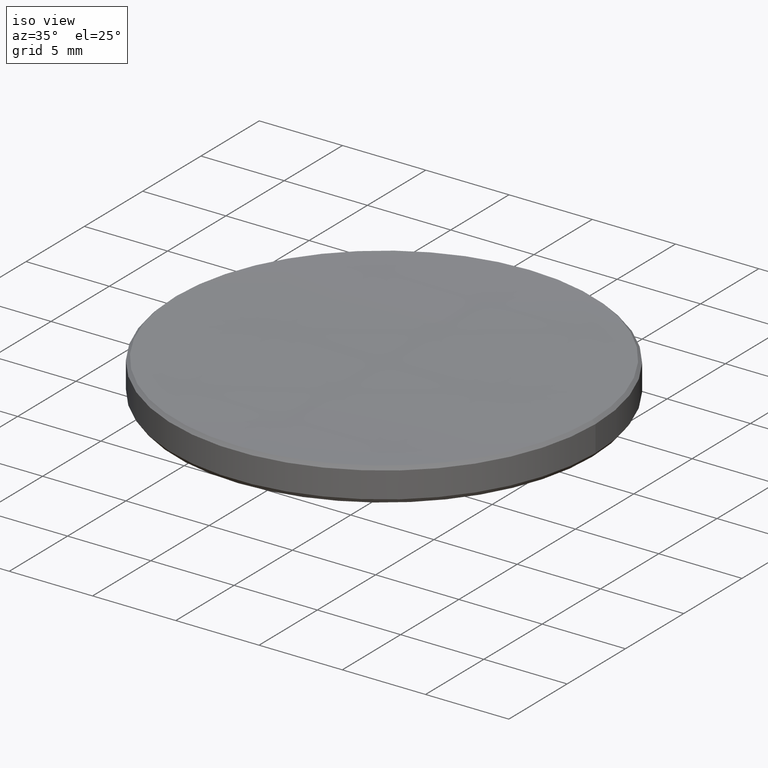
[diagram: clean part render]
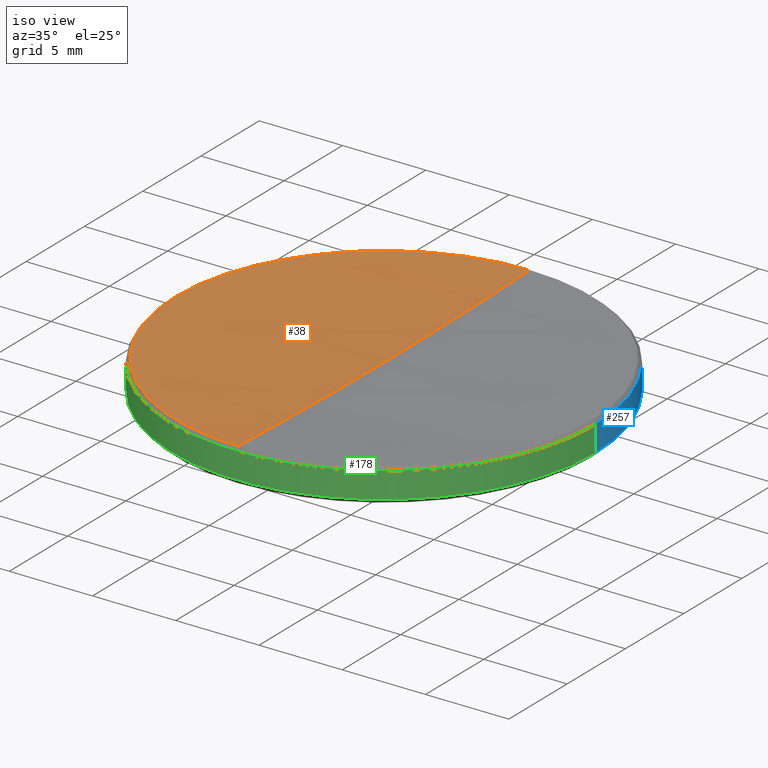
[diagram: same view with three faces highlighted in distinct colors, each labeled with its STEP entity id]
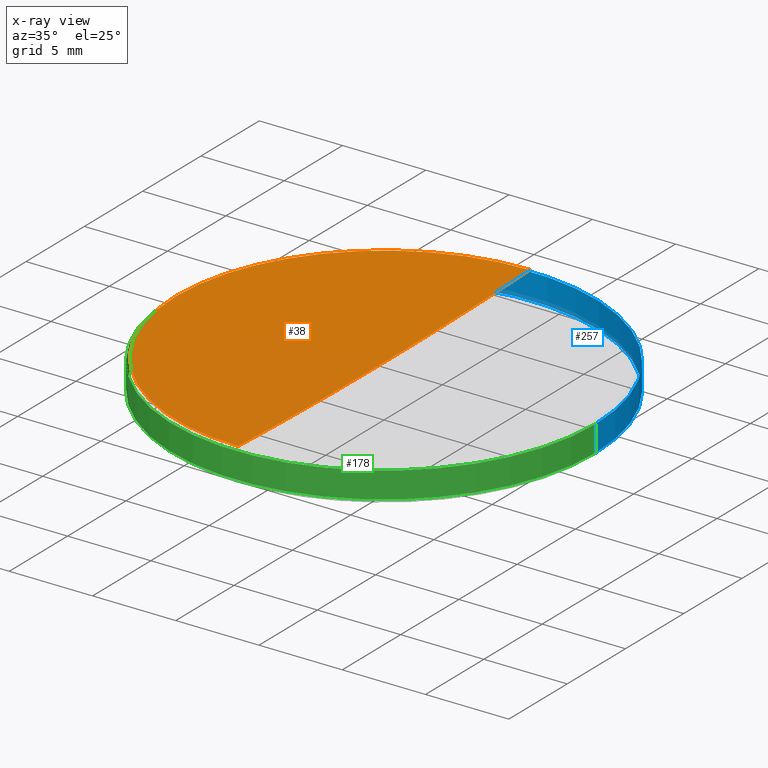
[diagram: x-ray of the same camera — body ghosted, the three highlighted faces saturated]
A machine part, iso view with three faces highlighted in distinct colors.
The next image is the same camera in x-ray (body ghosted, the three faces saturated) — at least one of them is partly hidden behind the body in this view.
Their STEP definitions:

[orange] entity #38 — the highlighted spherical surface has radius 330.58 mm.
#10 = CARTESIAN_POINT ( 'NONE',  ( 0.000000000000000000, 12.50735029655037422, 5.992649703450315002 ) ) ;
#15 = AXIS2_PLACEMENT_3D ( 'NONE', #216, #39, #148 ) ;
#16 = DIRECTION ( 'NONE',  ( 0.000000000000000000, 1.000000000000000000, 0.000000000000000000 ) ) ;
#28 = CIRCLE ( 'NONE', #199, 12.50735029654974895 ) ;
#30 = DIRECTION ( 'NONE',  ( -1.224646799147353207E-16, -1.000000000000000000, 0.000000000000000000 ) ) ;
#32 = CARTESIAN_POINT ( 'NONE',  ( -1.531708650648511547E-15, -12.50735029655037422, 5.992649703450315002 ) ) ;
#37 = ORIENTED_EDGE ( 'NONE', *, *, #201, .F. ) ;
#38 = ADVANCED_FACE ( 'NONE', ( #125 ), #151, .F. ) ;
#39 = DIRECTION ( 'NONE',  ( -0.000000000000000000, -0.000000000000000000, 1.000000000000000000 ) ) ;
#41 = DIRECTION ( 'NONE',  ( 0.000000000000000000, 0.000000000000000000, -1.000000000000000000 ) ) ;
#46 = DIRECTION ( 'NONE',  ( 1.000000000000000000, 0.000000000000000000, 0.000000000000000000 ) ) ;
#57 = AXIS2_PLACEMENT_3D ( 'NONE', #228, #324, #16 ) ;
#60 = CIRCLE ( 'NONE', #182, 330.5799999999999841 ) ;
#69 = CARTESIAN_POINT ( 'NONE',  ( 0.000000000000000000, 0.000000000000000000, 336.3359598953767886 ) ) ;
#86 = AXIS2_PLACEMENT_3D ( 'NONE', #69, #46, #41 ) ;
#102 = DIRECTION ( 'NONE',  ( -0.000000000000000000, -0.000000000000000000, 1.000000000000000000 ) ) ;
#123 = ORIENTED_EDGE ( 'NONE', *, *, #129, .T. ) ;
#125 = FACE_OUTER_BOUND ( 'NONE', #218, .T. ) ;
#129 = EDGE_CURVE ( 'NONE', #318, #266, #28, .T. ) ;
#148 = DIRECTION ( 'NONE',  ( 1.000000000000000000, 0.000000000000000000, 0.000000000000000000 ) ) ;
#149 = VERTEX_POINT ( 'NONE', #206 ) ;
#151 = SPHERICAL_SURFACE ( 'NONE', #57, 330.5799999999999841 ) ;
#182 = AXIS2_PLACEMENT_3D ( 'NONE', #305, #237, #30 ) ;
#184 = CARTESIAN_POINT ( 'NONE',  ( 0.000000000000000000, 0.000000000000000000, 5.992649703450315002 ) ) ;
#199 = AXIS2_PLACEMENT_3D ( 'NONE', #184, #102, #210 ) ;
#201 = EDGE_CURVE ( 'NONE', #149, #266, #60, .T. ) ;
#204 = CIRCLE ( 'NONE', #86, 330.5799999999999841 ) ;
#206 = CARTESIAN_POINT ( 'NONE',  ( 0.000000000000000000, 2.024218694310659877E-14, 5.755959895376805413 ) ) ;
#210 = DIRECTION ( 'NONE',  ( 1.000000000000000000, 0.000000000000000000, 0.000000000000000000 ) ) ;
#216 = CARTESIAN_POINT ( 'NONE',  ( 0.000000000000000000, 0.000000000000000000, 5.992649703450315002 ) ) ;
#218 = EDGE_LOOP ( 'NONE', ( #37, #244, #251, #123 ) ) ;
#228 = CARTESIAN_POINT ( 'NONE',  ( 0.000000000000000000, 0.000000000000000000, 336.3359598953767886 ) ) ;
#237 = DIRECTION ( 'NONE',  ( -1.000000000000000000, 1.224646799147353207E-16, 0.000000000000000000 ) ) ;
#244 = ORIENTED_EDGE ( 'NONE', *, *, #327, .T. ) ;
#251 = ORIENTED_EDGE ( 'NONE', *, *, #282, .T. ) ;
#266 = VERTEX_POINT ( 'NONE', #32 ) ;
#273 = VERTEX_POINT ( 'NONE', #10 ) ;
#282 = EDGE_CURVE ( 'NONE', #273, #318, #289, .T. ) ;
#287 = CARTESIAN_POINT ( 'NONE',  ( -12.50735029654974895, 0.000000000000000000, 5.992649703450315002 ) ) ;
#289 = CIRCLE ( 'NONE', #15, 12.50735029654974895 ) ;
#305 = CARTESIAN_POINT ( 'NONE',  ( 0.000000000000000000, 0.000000000000000000, 336.3359598953767886 ) ) ;
#318 = VERTEX_POINT ( 'NONE', #287 ) ;
#324 = DIRECTION ( 'NONE',  ( -1.000000000000000000, 0.000000000000000000, 0.000000000000000000 ) ) ;
#327 = EDGE_CURVE ( 'NONE', #149, #273, #204, .T. ) ;

[blue] entity #257 — the highlighted cylindrical surface (partial cylindrical patch) has radius 12.7 mm, axis along (-0, -0, -1).
#6 = EDGE_LOOP ( 'NONE', ( #239, #146, #314, #300 ) ) ;
#9 = VERTEX_POINT ( 'NONE', #120 ) ;
#26 = CARTESIAN_POINT ( 'NONE',  ( 0.000000000000000000, 0.000000000000000000, 4.232182868515954155 ) ) ;
#35 = DIRECTION ( 'NONE',  ( -0.000000000000000000, -0.000000000000000000, -1.000000000000000000 ) ) ;
#59 = LINE ( 'NONE', #222, #190 ) ;
#64 = CARTESIAN_POINT ( 'NONE',  ( 0.000000000000000000, 0.000000000000000000, 10.00000000000000000 ) ) ;
#67 = VECTOR ( 'NONE', #35, 1000.000000000000000 ) ;
#89 = CYLINDRICAL_SURFACE ( 'NONE', #139, 12.69999999999999929 ) ;
#90 = CARTESIAN_POINT ( 'NONE',  ( 12.69999999999999929, 1.555301434917138433E-15, 10.00000000000000000 ) ) ;
#93 = DIRECTION ( 'NONE',  ( -1.000000000000000000, 0.000000000000000000, 0.000000000000000000 ) ) ;
#95 = VERTEX_POINT ( 'NONE', #166 ) ;
#103 = EDGE_CURVE ( 'NONE', #293, #95, #171, .T. ) ;
#106 = CARTESIAN_POINT ( 'NONE',  ( 12.69999999999999929, 1.555301434917138433E-15, 5.800000000000138378 ) ) ;
#108 = DIRECTION ( 'NONE',  ( -0.000000000000000000, -0.000000000000000000, 1.000000000000000000 ) ) ;
#118 = DIRECTION ( 'NONE',  ( 1.000000000000000000, 0.000000000000000000, 0.000000000000000000 ) ) ;
#120 = CARTESIAN_POINT ( 'NONE',  ( -12.69999999999999929, 0.000000000000000000, 5.800000000000138378 ) ) ;
#139 = AXIS2_PLACEMENT_3D ( 'NONE', #64, #213, #93 ) ;
#146 = ORIENTED_EDGE ( 'NONE', *, *, #220, .T. ) ;
#165 = CIRCLE ( 'NONE', #270, 12.69999999999999929 ) ;
#166 = CARTESIAN_POINT ( 'NONE',  ( -12.69999999999999929, 0.000000000000000000, 4.232182868515954155 ) ) ;
#171 = CIRCLE ( 'NONE', #248, 12.69999999999999929 ) ;
#190 = VECTOR ( 'NONE', #265, 1000.000000000000000 ) ;
#194 = VERTEX_POINT ( 'NONE', #106 ) ;
#213 = DIRECTION ( 'NONE',  ( -0.000000000000000000, -0.000000000000000000, -1.000000000000000000 ) ) ;
#220 = EDGE_CURVE ( 'NONE', #194, #293, #268, .T. ) ;
#222 = CARTESIAN_POINT ( 'NONE',  ( -12.69999999999999929, 0.000000000000000000, 10.00000000000000000 ) ) ;
#239 = ORIENTED_EDGE ( 'NONE', *, *, #246, .T. ) ;
#246 = EDGE_CURVE ( 'NONE', #9, #194, #165, .T. ) ;
#248 = AXIS2_PLACEMENT_3D ( 'NONE', #26, #108, #281 ) ;
#257 = ADVANCED_FACE ( 'NONE', ( #313 ), #89, .T. ) ;
#261 = EDGE_CURVE ( 'NONE', #9, #95, #59, .T. ) ;
#262 = CARTESIAN_POINT ( 'NONE',  ( 12.69999999999999929, 1.555301434917138433E-15, 4.232182868515954155 ) ) ;
#265 = DIRECTION ( 'NONE',  ( -0.000000000000000000, -0.000000000000000000, -1.000000000000000000 ) ) ;
#268 = LINE ( 'NONE', #90, #67 ) ;
#270 = AXIS2_PLACEMENT_3D ( 'NONE', #286, #312, #118 ) ;
#281 = DIRECTION ( 'NONE',  ( -1.000000000000000000, 0.000000000000000000, 0.000000000000000000 ) ) ;
#286 = CARTESIAN_POINT ( 'NONE',  ( 0.000000000000000000, 0.000000000000000000, 5.800000000000138378 ) ) ;
#293 = VERTEX_POINT ( 'NONE', #262 ) ;
#300 = ORIENTED_EDGE ( 'NONE', *, *, #261, .F. ) ;
#312 = DIRECTION ( 'NONE',  ( 0.000000000000000000, 0.000000000000000000, -1.000000000000000000 ) ) ;
#313 = FACE_OUTER_BOUND ( 'NONE', #6, .T. ) ;
#314 = ORIENTED_EDGE ( 'NONE', *, *, #103, .T. ) ;

[green] entity #178 — the highlighted cylindrical surface (partial cylindrical patch) has radius 12.7 mm, axis along (-0, -0, -1).
#2 = EDGE_CURVE ( 'NONE', #194, #9, #235, .T. ) ;
#9 = VERTEX_POINT ( 'NONE', #120 ) ;
#19 = DIRECTION ( 'NONE',  ( 1.000000000000000000, 0.000000000000000000, 0.000000000000000000 ) ) ;
#20 = FACE_OUTER_BOUND ( 'NONE', #119, .T. ) ;
#35 = DIRECTION ( 'NONE',  ( -0.000000000000000000, -0.000000000000000000, -1.000000000000000000 ) ) ;
#50 = CARTESIAN_POINT ( 'NONE',  ( 0.000000000000000000, 0.000000000000000000, 10.00000000000000000 ) ) ;
#59 = LINE ( 'NONE', #222, #190 ) ;
#67 = VECTOR ( 'NONE', #35, 1000.000000000000000 ) ;
#76 = CYLINDRICAL_SURFACE ( 'NONE', #230, 12.69999999999999929 ) ;
#90 = CARTESIAN_POINT ( 'NONE',  ( 12.69999999999999929, 1.555301434917138433E-15, 10.00000000000000000 ) ) ;
#95 = VERTEX_POINT ( 'NONE', #166 ) ;
#97 = ORIENTED_EDGE ( 'NONE', *, *, #227, .T. ) ;
#106 = CARTESIAN_POINT ( 'NONE',  ( 12.69999999999999929, 1.555301434917138433E-15, 5.800000000000138378 ) ) ;
#119 = EDGE_LOOP ( 'NONE', ( #217, #169, #325, #97 ) ) ;
#120 = CARTESIAN_POINT ( 'NONE',  ( -12.69999999999999929, 0.000000000000000000, 5.800000000000138378 ) ) ;
#133 = DIRECTION ( 'NONE',  ( -0.000000000000000000, -0.000000000000000000, -1.000000000000000000 ) ) ;
#144 = AXIS2_PLACEMENT_3D ( 'NONE', #145, #236, #195 ) ;
#145 = CARTESIAN_POINT ( 'NONE',  ( 0.000000000000000000, 0.000000000000000000, 4.232182868515954155 ) ) ;
#159 = DIRECTION ( 'NONE',  ( -1.000000000000000000, 0.000000000000000000, 0.000000000000000000 ) ) ;
#166 = CARTESIAN_POINT ( 'NONE',  ( -12.69999999999999929, 0.000000000000000000, 4.232182868515954155 ) ) ;
#169 = ORIENTED_EDGE ( 'NONE', *, *, #2, .T. ) ;
#178 = ADVANCED_FACE ( 'NONE', ( #20 ), #76, .T. ) ;
#186 = AXIS2_PLACEMENT_3D ( 'NONE', #250, #298, #19 ) ;
#190 = VECTOR ( 'NONE', #265, 1000.000000000000000 ) ;
#194 = VERTEX_POINT ( 'NONE', #106 ) ;
#195 = DIRECTION ( 'NONE',  ( -1.000000000000000000, 0.000000000000000000, 0.000000000000000000 ) ) ;
#217 = ORIENTED_EDGE ( 'NONE', *, *, #220, .F. ) ;
#220 = EDGE_CURVE ( 'NONE', #194, #293, #268, .T. ) ;
#222 = CARTESIAN_POINT ( 'NONE',  ( -12.69999999999999929, 0.000000000000000000, 10.00000000000000000 ) ) ;
#227 = EDGE_CURVE ( 'NONE', #95, #293, #309, .T. ) ;
#230 = AXIS2_PLACEMENT_3D ( 'NONE', #50, #133, #159 ) ;
#235 = CIRCLE ( 'NONE', #186, 12.69999999999999929 ) ;
#236 = DIRECTION ( 'NONE',  ( -0.000000000000000000, -0.000000000000000000, 1.000000000000000000 ) ) ;
#250 = CARTESIAN_POINT ( 'NONE',  ( 0.000000000000000000, 0.000000000000000000, 5.800000000000138378 ) ) ;
#261 = EDGE_CURVE ( 'NONE', #9, #95, #59, .T. ) ;
#262 = CARTESIAN_POINT ( 'NONE',  ( 12.69999999999999929, 1.555301434917138433E-15, 4.232182868515954155 ) ) ;
#265 = DIRECTION ( 'NONE',  ( -0.000000000000000000, -0.000000000000000000, -1.000000000000000000 ) ) ;
#268 = LINE ( 'NONE', #90, #67 ) ;
#293 = VERTEX_POINT ( 'NONE', #262 ) ;
#298 = DIRECTION ( 'NONE',  ( 0.000000000000000000, 0.000000000000000000, -1.000000000000000000 ) ) ;
#309 = CIRCLE ( 'NONE', #144, 12.69999999999999929 ) ;
#325 = ORIENTED_EDGE ( 'NONE', *, *, #261, .T. ) ;